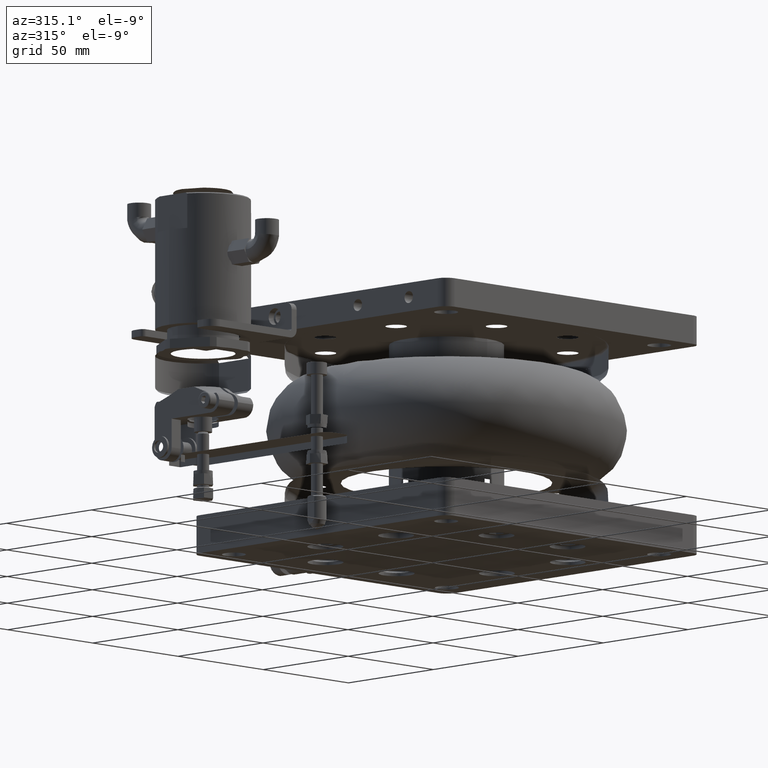
[diagram: clean part render]
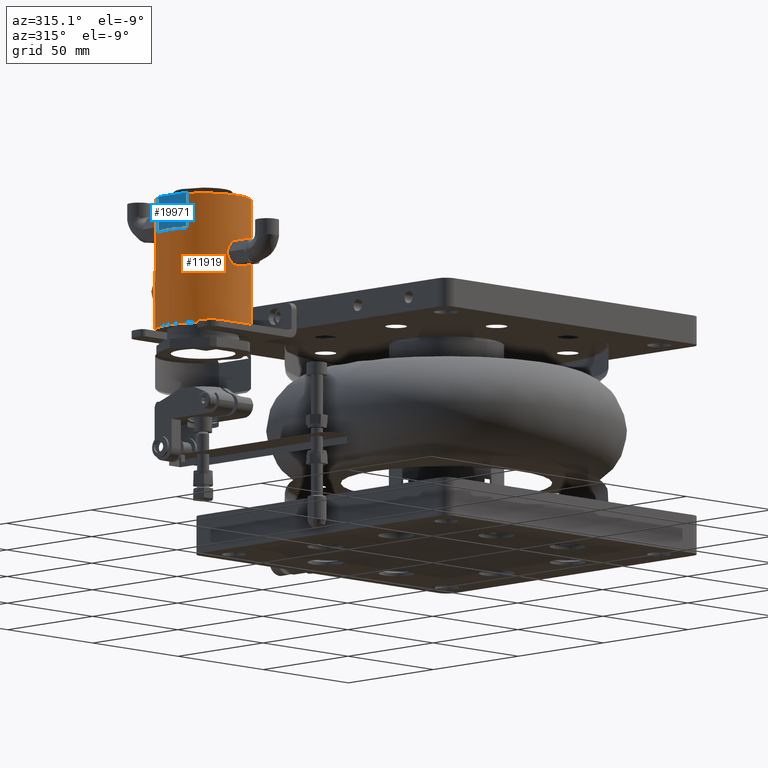
[diagram: same view with the hole feature highlighted: cylindrical wall and planar end face, labeled with their STEP entity ids]
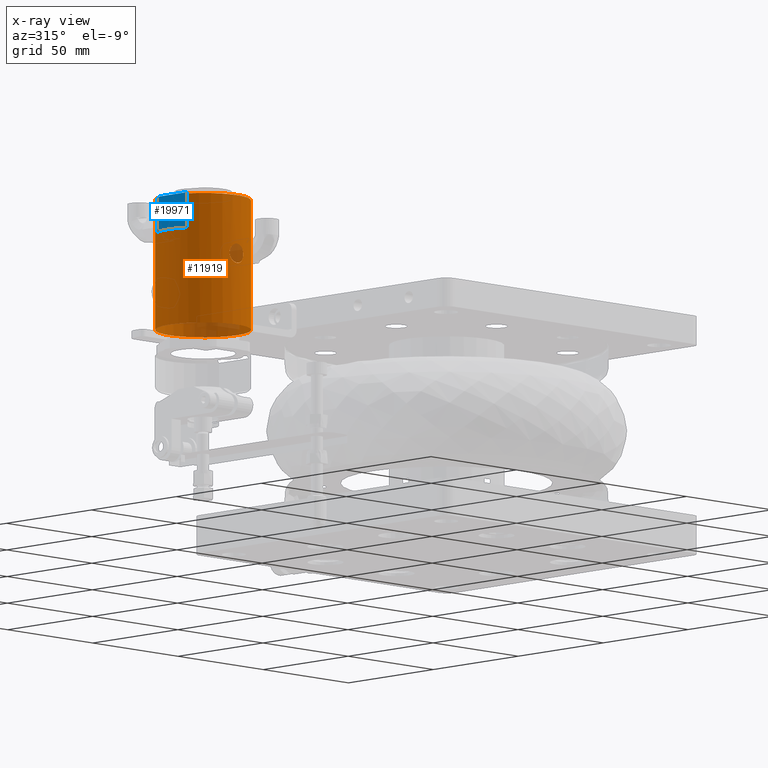
[diagram: x-ray of the same camera — body ghosted, the hole faces saturated]
A machine part, auxiliary view. The highlighted faces form one hole feature of diameter 40 mm: the cylindrical wall (entity #11919, orange) and its adjacent planar end face (entity #19971, blue) — they share a circular edge in the B-rep.
The next image is the same camera in x-ray (body ghosted, the hole faces saturated) — the bore reads through the body.
Wall:
#114 = CARTESIAN_POINT ( 'NONE',  ( 27.35596215659693797, -11.53285506383426195, 236.4699426500647235 ) ) ;
#231 = CARTESIAN_POINT ( 'NONE',  ( 23.91260019275699378, 28.06834811713664024, 247.9977288244026283 ) ) ;
#237 = CARTESIAN_POINT ( 'NONE',  ( 21.35640825523396558, -11.83494652024776173, 240.4878932964990383 ) ) ;
#366 = CARTESIAN_POINT ( 'NONE',  ( 20.92922561031209838, -11.78435881711153677, 233.7933220022276828 ) ) ;
#622 = CARTESIAN_POINT ( 'NONE',  ( 26.87190525661234375, 27.76252008699253793, 227.0218349688905448 ) ) ;
#739 = ORIENTED_EDGE ( 'NONE', *, *, #5106, .T. ) ;
#954 = B_SPLINE_CURVE_WITH_KNOTS ( 'NONE', 3,
 ( #10556, #18221, #14521, #4456, #366, #2219, #26127, #22297, #24539, #20455, #14389, #20582, #10293, #8565, #4067, #12143, #22173, #18347, #237, #8432, #12407, #24277 ),
 .UNSPECIFIED., .F., .F.,
 ( 4, 2, 2, 2, 2, 2, 2, 2, 2, 2, 4 ),
 ( 0.000000000000000000, 0.1249999999999991951, 0.2499999999999983902, 0.3125000000000003331, 0.3750000000000022204, 0.5000000000000001110, 0.5625000000000022204, 0.6250000000000044409, 0.7500000000000028866, 0.8750000000000014433, 1.000000000000000000 ),
 .UNSPECIFIED. ) ;
#995 = CARTESIAN_POINT ( 'NONE',  ( 23.38160134876549989, 28.06834811713664735, 255.9977288244027420 ) ) ;
#1090 = FACE_BOUND ( 'NONE', #8792, .T. ) ;
#1119 = CARTESIAN_POINT ( 'NONE',  ( 22.33837546488574333, 28.04716229549928030, 255.8955298459293886 ) ) ;
#1405 = CARTESIAN_POINT ( 'NONE',  ( 24.42295089680361642, 28.04727231875631688, 255.8961071384808861 ) ) ;
#2128 = VERTEX_POINT ( 'NONE', #14298 ) ;
#2155 = CIRCLE ( 'NONE', #25352, 20.00000000000000355 ) ;
#2212 = CARTESIAN_POINT ( 'NONE',  ( 24.42295089753233839, 28.04727231870035453, 228.8961071384809429 ) ) ;
#2219 = CARTESIAN_POINT ( 'NONE',  ( 20.36550199645368764, -11.70383371851086629, 234.3569381122361506 ) ) ;
#2228 = CARTESIAN_POINT ( 'NONE',  ( 24.42142303333638864, -11.90624858263340080, 240.8697944893502552 ) ) ;
#2335 = CARTESIAN_POINT ( 'NONE',  ( 25.83491133755752145, 27.92092357471315012, 248.7942291088532443 ) ) ;
#2405 = ORIENTED_EDGE ( 'NONE', *, *, #3723, .T. ) ;
#2461 = B_SPLINE_CURVE_WITH_KNOTS ( 'NONE', 3,
 ( #10287, #10418, #24400, #14383, #6835, #14514, #12660, #8295, #8559, #16877, #22554, #4450, #20703, #2602, #4324, #24786, #6305, #622, #16751, #2462, #4838, #2212, #16622, #22426 ),
 .UNSPECIFIED., .F., .F.,
 ( 4, 2, 2, 2, 2, 2, 2, 2, 2, 2, 2, 4 ),
 ( 0.000000000000000000, 0.1249999999999934497, 0.2499999999999868994, 0.3124999999999859557, 0.3437499999999881761, 0.3749999999999904521, 0.4999999999999923395, 0.5624999999999932276, 0.6249999999999942268, 0.7499999999999962252, 0.8749999999999981126, 1.000000000000000000 ),
 .UNSPECIFIED. ) ;
#2462 = CARTESIAN_POINT ( 'NONE',  ( 25.83366721896037888, 27.92106381629494294, 228.2019772700732290 ) ) ;
#2602 = CARTESIAN_POINT ( 'NONE',  ( 27.38146343688402595, 27.66429421054079896, 225.2656706726552898 ) ) ;
#2631 = EDGE_CURVE ( 'NONE', #22022, #23775, #5475, .T. ) ;
#2666 = CARTESIAN_POINT ( 'NONE',  ( 21.35651129918334945, 27.97165265748477125, 221.5075091491665091 ) ) ;
#2730 = CARTESIAN_POINT ( 'NONE',  ( 25.83366721840096858, 27.92106381637481149, 255.2019772706079550 ) ) ;
#2954 = DIRECTION ( 'NONE',  ( -3.592491552025360776E-15, 5.199588846072453600E-16, 1.000000000000000000 ) ) ;
#3095 = CARTESIAN_POINT ( 'NONE',  ( 19.91008873468642548, 27.76530193656049406, 254.0032658745925858 ) ) ;
#3244 = EDGE_CURVE ( 'NONE', #3913, #10311, #11210, .T. ) ;
#3473 = CARTESIAN_POINT ( 'NONE',  ( 19.88941678096776755, 27.76218168619654136, 222.9768866310827207 ) ) ;
#3486 = CARTESIAN_POINT ( 'NONE',  ( 19.50875006638541720, 27.68985959757106841, 250.9610018479168616 ) ) ;
#3723 = EDGE_CURVE ( 'NONE', #22120, #6282, #17170, .T. ) ;
#3814 = CARTESIAN_POINT ( 'NONE',  ( 41.38160134876575569, 16.78614600421797576, 184.4977288244027989 ) ) ;
#3847 = ORIENTED_EDGE ( 'NONE', *, *, #20392, .T. ) ;
#3855 = AXIS2_PLACEMENT_3D ( 'NONE', #17164, #21511, #19544 ) ;
#3913 = VERTEX_POINT ( 'NONE', #25557 ) ;
#4067 = CARTESIAN_POINT ( 'NONE',  ( 19.58592154399034158, -11.56843934093458515, 238.2871153693092197 ) ) ;
#4074 = CARTESIAN_POINT ( 'NONE',  ( 26.56496484466958208, -11.67722230022383201, 239.4348818108748560 ) ) ;
#4110 = CARTESIAN_POINT ( 'NONE',  ( 41.38160134876549279, -0.6494497699447000505, 261.4977288244028273 ) ) ;
#4175 = VECTOR ( 'NONE', #2954, 1000.000000000000000 ) ;
#4324 = CARTESIAN_POINT ( 'NONE',  ( 27.35588005800628508, 27.66956806345555364, 225.5261421040621883 ) ) ;
#4340 = CARTESIAN_POINT ( 'NONE',  ( 26.58278724911428625, -11.67742119337618867, 234.5416489851308199 ) ) ;
#4450 = CARTESIAN_POINT ( 'NONE',  ( 27.28015208234242195, 27.68580620643498946, 223.9556795891849674 ) ) ;
#4456 = CARTESIAN_POINT ( 'NONE',  ( 21.35986551287138369, -11.83525899423776195, 233.5058222492511959 ) ) ;
#4581 = CARTESIAN_POINT ( 'NONE',  ( 27.17628789794840571, 27.70532883542148994, 253.2900605636088187 ) ) ;
#4710 = CARTESIAN_POINT ( 'NONE',  ( 26.96885902040278538, 27.74410648563020132, 250.2227837394485164 ) ) ;
#4838 = CARTESIAN_POINT ( 'NONE',  ( 25.40356879872938833, 27.97195253356915146, 228.4896203947936328 ) ) ;
#4897 = CARTESIAN_POINT ( 'NONE',  ( 5.381601348765540749, 16.78614600421800418, 246.9977288244026852 ) ) ;
#5088 = CARTESIAN_POINT ( 'NONE',  ( 23.38160134876568463, 8.068348117136620701, 206.9977288244027989 ) ) ;
#5095 = CARTESIAN_POINT ( 'NONE',  ( 23.38160134876549989, 28.06834811713664735, 255.9977288244027420 ) ) ;
#5106 = EDGE_CURVE ( 'NONE', #8853, #16606, #20660, .T. ) ;
#5202 = CARTESIAN_POINT ( 'NONE',  ( 19.58574320650059519, 27.70510114275655766, 250.7088488370603443 ) ) ;
#5330 = CARTESIAN_POINT ( 'NONE',  ( 20.19851611278376424, 27.81396428819347477, 254.4352688740602559 ) ) ;
#5444 = CARTESIAN_POINT ( 'NONE',  ( 20.19851611285753989, 27.81396428820533373, 227.4352688742643238 ) ) ;
#5475 = LINE ( 'NONE', #9203, #18831 ) ;
#5583 = CARTESIAN_POINT ( 'NONE',  ( 21.35874647433871232, 27.97185018023045799, 228.4890514842721245 ) ) ;
#5707 = CARTESIAN_POINT ( 'NONE',  ( 22.85076442146784004, 28.06834811713663669, 228.9977288244027704 ) ) ;
#5722 = VERTEX_POINT ( 'NONE', #21680 ) ;
#5891 = CIRCLE ( 'NONE', #13925, 20.00000000000000355 ) ;
#6282 = VERTEX_POINT ( 'NONE', #13353 ) ;
#6305 = CARTESIAN_POINT ( 'NONE',  ( 27.17628789798032329, 27.70532883541550362, 226.2900605635888098 ) ) ;
#6576 = CARTESIAN_POINT ( 'NONE',  ( 27.38146343688396200, 27.66429421054079540, 252.2656706725984748 ) ) ;
#6835 = CARTESIAN_POINT ( 'NONE',  ( 25.83491133773219062, 27.92092357468818520, 221.7942291088765501 ) ) ;
#7195 = CARTESIAN_POINT ( 'NONE',  ( 19.88941678137075897, 27.76218168627232430, 249.9768866305255131 ) ) ;
#7400 = DIRECTION ( 'NONE',  ( 3.592491552025360776E-15, -5.199588846072453600E-16, -1.000000000000000000 ) ) ;
#7585 = EDGE_LOOP ( 'NONE', ( #11931 ) ) ;
#7673 = CARTESIAN_POINT ( 'NONE',  ( 41.38160134876547858, 16.78614600421801839, 261.4977288244028273 ) ) ;
#7776 = CARTESIAN_POINT ( 'NONE',  ( 26.87225216619314594, -11.62576149756875843, 234.9742197855596544 ) ) ;
#7798 = DIRECTION ( 'NONE',  ( -1.000000000000000000, 0.000000000000000000, -4.163336342344336238E-15 ) ) ;
#7890 = ORIENTED_EDGE ( 'NONE', *, *, #25388, .T. ) ;
#7907 = CARTESIAN_POINT ( 'NONE',  ( 27.28050655440199890, -11.54902922974305568, 238.0377338722959450 ) ) ;
#7956 = CARTESIAN_POINT ( 'NONE',  ( 20.92720790349941851, 27.92079482525963385, 228.2005024519211531 ) ) ;
#8173 = CARTESIAN_POINT ( 'NONE',  ( 26.39929540927092333, -11.70358591821106131, 239.6366503668917574 ) ) ;
#8295 = CARTESIAN_POINT ( 'NONE',  ( 26.77943755302661089, 27.77773815100605503, 222.8816840274028266 ) ) ;
#8310 = CARTESIAN_POINT ( 'NONE',  ( 23.90901096982158691, -11.92634071629573533, 240.9721419573922105 ) ) ;
#8432 = CARTESIAN_POINT ( 'NONE',  ( 22.33848225586424974, -11.91050187595975451, 240.8957617188220581 ) ) ;
#8559 = CARTESIAN_POINT ( 'NONE',  ( 26.84615233044478444, 27.76608330353339227, 222.9930350965139496 ) ) ;
#8565 = CARTESIAN_POINT ( 'NONE',  ( 19.50888335559886144, -11.55318974774812624, 238.0349450476471986 ) ) ;
#8620 = DIRECTION ( 'NONE',  ( -1.000000000000000000, 0.000000000000000000, -2.775557561562890957E-15 ) ) ;
#8792 = EDGE_LOOP ( 'NONE', ( #10399, #14588 ) ) ;
#8813 = CARTESIAN_POINT ( 'NONE',  ( 26.84615233056407746, 27.76608330351233178, 249.9930350965299795 ) ) ;
#8853 = VERTEX_POINT ( 'NONE', #20733 ) ;
#9050 = EDGE_LOOP ( 'NONE', ( #14461, #3847 ) ) ;
#9147 = AXIS2_PLACEMENT_3D ( 'NONE', #15138, #11574, #11057 ) ;
#9153 = FACE_BOUND ( 'NONE', #9050, .T. ) ;
#9203 = CARTESIAN_POINT ( 'NONE',  ( 5.381601348765766346, 16.78614600421796865, 184.4977288244026852 ) ) ;
#9237 = EDGE_CURVE ( 'NONE', #2128, #15131, #2461, .T. ) ;
#9280 = EDGE_CURVE ( 'NONE', #17584, #5722, #22636, .T. ) ;
#9420 = CYLINDRICAL_SURFACE ( 'NONE', #15637, 20.00000000000000355 ) ;
#9448 = CARTESIAN_POINT ( 'NONE',  ( 21.35651129954433358, 27.97165265751257124, 248.5075091491666512 ) ) ;
#9615 = EDGE_CURVE ( 'NONE', #6282, #13778, #23302, .T. ) ;
#9820 = EDGE_CURVE ( 'NONE', #23775, #20193, #5891, .T. ) ;
#10287 = CARTESIAN_POINT ( 'NONE',  ( 23.38160134876562424, 28.06834811713663314, 220.9977288244027420 ) ) ;
#10293 = CARTESIAN_POINT ( 'NONE',  ( 19.40711500212839269, -11.53282917194726664, 237.5243752312490528 ) ) ;
#10301 = CARTESIAN_POINT ( 'NONE',  ( 25.40375759526217081, -11.83523817740843143, 233.5059383709548513 ) ) ;
#10311 = VERTEX_POINT ( 'NONE', #25478 ) ;
#10319 = CARTESIAN_POINT ( 'NONE',  ( 23.38160134876552831, 28.06834811713664735, 247.9977288244027420 ) ) ;
#10399 = ORIENTED_EDGE ( 'NONE', *, *, #9237, .T. ) ;
#10418 = CARTESIAN_POINT ( 'NONE',  ( 23.91260019275701865, 28.06834811713664024, 220.9977288244027704 ) ) ;
#10548 = CARTESIAN_POINT ( 'NONE',  ( 27.02434268005038476, 27.73388003404846813, 250.3399577768745132 ) ) ;
#10556 = CARTESIAN_POINT ( 'NONE',  ( 23.38160134876559582, -11.93165188286336864, 232.9977288244027420 ) ) ;
#10685 = CARTESIAN_POINT ( 'NONE',  ( 26.39738699001786060, 27.84057377627743080, 249.3566379530198276 ) ) ;
#10744 = CARTESIAN_POINT ( 'NONE',  ( 20.92674902577597962, 27.92071849237226289, 221.7955440087214072 ) ) ;
#10811 = CARTESIAN_POINT ( 'NONE',  ( 25.40356879945789714, 27.97195253351319977, 255.4896203947935476 ) ) ;
#11057 = DIRECTION ( 'NONE',  ( -1.000000000000000000, 0.000000000000000000, -4.163336342344336238E-15 ) ) ;
#11179 = CARTESIAN_POINT ( 'NONE',  ( 19.40703862889676046, 27.66950984337324471, 251.4716427294065397 ) ) ;
#11210 = B_SPLINE_CURVE_WITH_KNOTS ( 'NONE', 3,
 ( #16116, #20194, #8310, #2228, #11888, #14398, #12150, #8173, #4074, #24413, #18231, #7907, #15982, #18095, #114, #22443, #22052, #7776, #4340, #15854, #10301, #24155, #26007, #23890 ),
 .UNSPECIFIED., .F., .F.,
 ( 4, 2, 2, 2, 2, 2, 2, 2, 2, 2, 2, 4 ),
 ( 0.000000000000000000, 0.06249999999999888978, 0.1249999999999977796, 0.2499999999999980571, 0.3124999999999978906, 0.3749999999999977240, 0.5000000000000034417, 0.5625000000000029976, 0.6250000000000025535, 0.7500000000000016653, 0.8750000000000007772, 1.000000000000000000 ),
 .UNSPECIFIED. ) ;
#11308 = CARTESIAN_POINT ( 'NONE',  ( 19.38154921372559158, 27.66425541738193061, 252.5267589187808426 ) ) ;
#11324 = DIRECTION ( 'NONE',  ( -1.000000000000000000, 0.000000000000000000, -4.163336342344336238E-15 ) ) ;
#11462 = CARTESIAN_POINT ( 'NONE',  ( 23.91195465552982569, 28.06834811713664735, 255.9977288244027989 ) ) ;
#11574 = DIRECTION ( 'NONE',  ( 3.592491552025360776E-15, -5.199588846072453600E-16, -1.000000000000000000 ) ) ;
#11803 = CARTESIAN_POINT ( 'NONE',  ( 19.58574320670224367, 27.70510114279442249, 223.7088488367817547 ) ) ;
#11888 = CARTESIAN_POINT ( 'NONE',  ( 24.67423151313634477, -11.89133950228131198, 240.7923411961808711 ) ) ;
#11919 = ADVANCED_FACE ( 'NONE', ( #23023, #1090, #25643, #9153, #15103 ), #9420, .T. ) ;
#11931 = ORIENTED_EDGE ( 'NONE', *, *, #21031, .T. ) ;
#12070 = CARTESIAN_POINT ( 'NONE',  ( 19.38162758363955618, 27.66427141457311834, 224.7317966598398016 ) ) ;
#12143 = CARTESIAN_POINT ( 'NONE',  ( 19.88957312122486698, -11.62551301453141583, 239.0187942157343741 ) ) ;
#12150 = CARTESIAN_POINT ( 'NONE',  ( 25.83696577798118810, -11.78397157814185370, 240.1996924076705398 ) ) ;
#12180 = ORIENTED_EDGE ( 'NONE', *, *, #9615, .T. ) ;
#12337 = CARTESIAN_POINT ( 'NONE',  ( 22.85034282279362827, 28.06834811713663669, 220.9977288244027420 ) ) ;
#12401 = CARTESIAN_POINT ( 'NONE',  ( 25.40410415957767043, 27.97186654149187390, 248.5063272166214006 ) ) ;
#12407 = CARTESIAN_POINT ( 'NONE',  ( 22.85031300212935079, -11.93165188286336509, 240.9977288244027704 ) ) ;
#12660 = CARTESIAN_POINT ( 'NONE',  ( 26.56313476657345518, 27.81421428259223561, 222.5582005771231877 ) ) ;
#12794 = CARTESIAN_POINT ( 'NONE',  ( 26.87190525667593377, 27.76252008698058660, 254.0218349688504418 ) ) ;
#13003 = CARTESIAN_POINT ( 'NONE',  ( 5.381601348765766346, -0.6494497699447501216, 184.4977288244026852 ) ) ;
#13013 = CARTESIAN_POINT ( 'NONE',  ( 41.38160134876576990, -0.6494497699447432382, 184.4977288244027989 ) ) ;
#13027 = VERTEX_POINT ( 'NONE', #20951 ) ;
#13156 = CARTESIAN_POINT ( 'NONE',  ( 21.35874647457387354, 27.97185018024855196, 255.4890514846792087 ) ) ;
#13173 = DIRECTION ( 'NONE',  ( -3.592491552025360776E-15, 5.199588846072453600E-16, 1.000000000000000000 ) ) ;
#13353 = CARTESIAN_POINT ( 'NONE',  ( 41.38160134876553542, -0.6494497699447160377, 246.9977288244027989 ) ) ;
#13387 = EDGE_CURVE ( 'NONE', #13778, #8853, #13574, .T. ) ;
#13531 = CARTESIAN_POINT ( 'NONE',  ( 19.40703862890003961, 27.66950984337388064, 224.4716427297118173 ) ) ;
#13574 = CIRCLE ( 'NONE', #3855, 20.00000000000000355 ) ;
#13662 = CARTESIAN_POINT ( 'NONE',  ( 20.17828412995284282, 27.81376956715584114, 222.5443749887956244 ) ) ;
#13778 = VERTEX_POINT ( 'NONE', #4110 ) ;
#13785 = CARTESIAN_POINT ( 'NONE',  ( 20.36433549731398074, 27.84034924631982122, 227.6371600281012491 ) ) ;
#13925 = AXIS2_PLACEMENT_3D ( 'NONE', #22616, #22355, #8620 ) ;
#14056 = CARTESIAN_POINT ( 'NONE',  ( 19.48280272440139171, 27.68574434317165256, 226.0378936017405351 ) ) ;
#14298 = CARTESIAN_POINT ( 'NONE',  ( 23.38160134876562424, 28.06834811713663314, 220.9977288244027420 ) ) ;
#14383 = CARTESIAN_POINT ( 'NONE',  ( 25.40410415983895831, 27.97186654147176554, 221.5063272167298010 ) ) ;
#14389 = CARTESIAN_POINT ( 'NONE',  ( 19.38146676985595462, -11.52754235432610841, 236.4693869912880189 ) ) ;
#14398 = CARTESIAN_POINT ( 'NONE',  ( 25.40704354303413126, -11.83485952243809258, 240.4873768684683739 ) ) ;
#14461 = ORIENTED_EDGE ( 'NONE', *, *, #3244, .T. ) ;
#14514 = CARTESIAN_POINT ( 'NONE',  ( 26.39738698993066279, 27.84057377628987595, 222.3566379530080894 ) ) ;
#14521 = CARTESIAN_POINT ( 'NONE',  ( 22.33879820212483125, -11.91047951191728949, 233.0998721540557028 ) ) ;
#14588 = ORIENTED_EDGE ( 'NONE', *, *, #24803, .T. ) ;
#14643 = CARTESIAN_POINT ( 'NONE',  ( 27.35588005800624245, 27.66956806345555719, 252.5261421039767242 ) ) ;
#14771 = CARTESIAN_POINT ( 'NONE',  ( 24.42604679693444680, 28.04707923285541682, 248.1003667753378181 ) ) ;
#14955 = ORIENTED_EDGE ( 'NONE', *, *, #13387, .T. ) ;
#14969 = ORIENTED_EDGE ( 'NONE', *, *, #9280, .T. ) ;
#15008 = CARTESIAN_POINT ( 'NONE',  ( 5.381601348765541637, -0.6494497699447178141, 246.9977288244026852 ) ) ;
#15091 = VECTOR ( 'NONE', #24874, 1000.000000000000000 ) ;
#15103 = FACE_OUTER_BOUND ( 'NONE', #22115, .T. ) ;
#15131 = VERTEX_POINT ( 'NONE', #23020 ) ;
#15138 = CARTESIAN_POINT ( 'NONE',  ( 23.38160134876553897, 8.068348117136642017, 246.9977288244027420 ) ) ;
#15266 = CARTESIAN_POINT ( 'NONE',  ( 23.38160134876552831, 28.06834811713664735, 247.9977288244027420 ) ) ;
#15363 = DIRECTION ( 'NONE',  ( 3.592491552025360776E-15, -5.199588846072453600E-16, -1.000000000000000000 ) ) ;
#15396 = CARTESIAN_POINT ( 'NONE',  ( 22.33853872496636228, 28.04720047900259061, 248.0996848893555580 ) ) ;
#15615 = B_SPLINE_CURVE_WITH_KNOTS ( 'NONE', 3,
 ( #995, #21071, #1119, #13156, #21330, #21591, #5330, #3095, #25551, #23315, #11308, #25158, #11179, #3486, #5202, #7195, #25287, #19233, #9448, #15396, #21456, #15266 ),
 .UNSPECIFIED., .F., .F.,
 ( 4, 2, 2, 2, 2, 2, 2, 2, 2, 2, 4 ),
 ( 0.000000000000000000, 0.1249999999999857336, 0.2499999999999714673, 0.3124999999999688582, 0.3749999999999663047, 0.4999999999999730216, 0.5624999999999764633, 0.6249999999999797939, 0.7499999999999865663, 0.8749999999999932276, 1.000000000000000000 ),
 .UNSPECIFIED. ) ;
#15637 = AXIS2_PLACEMENT_3D ( 'NONE', #25394, #15363, #23534 ) ;
#15854 = CARTESIAN_POINT ( 'NONE',  ( 25.83408138201863835, -11.78431766152081650, 233.7937678942782043 ) ) ;
#15982 = CARTESIAN_POINT ( 'NONE',  ( 27.38179525555675298, -11.52753024407597238, 237.5263648664252685 ) ) ;
#16034 = CARTESIAN_POINT ( 'NONE',  ( 19.91008873476001284, 27.76530193657342593, 227.0032658747966536 ) ) ;
#16116 = CARTESIAN_POINT ( 'NONE',  ( 23.38160134876556384, -11.93165188286336509, 240.9977288244027704 ) ) ;
#16606 = VERTEX_POINT ( 'NONE', #15008 ) ;
#16616 = EDGE_CURVE ( 'NONE', #5722, #17584, #15615, .T. ) ;
#16622 = CARTESIAN_POINT ( 'NONE',  ( 23.91195465626068639, 28.06834811713664379, 228.9977288244028273 ) ) ;
#16751 = CARTESIAN_POINT ( 'NONE',  ( 26.58224693038556907, 27.81420377153251167, 227.4544743941436593 ) ) ;
#16763 = EDGE_CURVE ( 'NONE', #16606, #22022, #26115, .T. ) ;
#16877 = CARTESIAN_POINT ( 'NONE',  ( 26.96885902032699889, 27.74410648564407467, 223.2227837394381993 ) ) ;
#17164 = CARTESIAN_POINT ( 'NONE',  ( 23.38160134876548568, 8.068348117136649122, 261.4977288244027136 ) ) ;
#17170 = CIRCLE ( 'NONE', #9147, 20.00000000000000355 ) ;
#17584 = VERTEX_POINT ( 'NONE', #10319 ) ;
#17858 = CARTESIAN_POINT ( 'NONE',  ( 23.38160134876553897, 8.068348117136642017, 246.9977288244027420 ) ) ;
#18060 = B_SPLINE_CURVE_WITH_KNOTS ( 'NONE', 3,
 ( #23682, #5707, #26056, #5583, #7956, #13785, #5444, #16034, #24074, #14056, #21836, #12070, #13531, #21578, #11803, #3473, #13662, #10744, #2666, #22618, #12337, #20388 ),
 .UNSPECIFIED., .F., .F.,
 ( 4, 2, 2, 2, 2, 2, 2, 2, 2, 2, 4 ),
 ( 0.000000000000000000, 0.1250000000000018874, 0.2500000000000037748, 0.3125000000000049960, 0.3750000000000062172, 0.5000000000000086597, 0.5625000000000098810, 0.6250000000000109912, 0.7500000000000073275, 0.8750000000000036637, 1.000000000000000000 ),
 .UNSPECIFIED. ) ;
#18095 = CARTESIAN_POINT ( 'NONE',  ( 27.38150364199952236, -11.52758976943629321, 236.7304040701212102 ) ) ;
#18221 = CARTESIAN_POINT ( 'NONE',  ( 22.85105298868976931, -11.93165188286336864, 232.9977288244027136 ) ) ;
#18231 = CARTESIAN_POINT ( 'NONE',  ( 26.97497231097057124, -11.60646888508943242, 238.7749217486110638 ) ) ;
#18347 = CARTESIAN_POINT ( 'NONE',  ( 20.92668611814479362, -11.78401429485908025, 240.1998647650969190 ) ) ;
#18601 = CARTESIAN_POINT ( 'NONE',  ( 27.28015208234211642, 27.68580620643504275, 250.9556795895821892 ) ) ;
#18831 = VECTOR ( 'NONE', #21346, 1000.000000000000000 ) ;
#18858 = CARTESIAN_POINT ( 'NONE',  ( 23.38160134876552831, 28.06834811713664735, 247.9977288244027420 ) ) ;
#19058 = VECTOR ( 'NONE', #7400, 1000.000000000000000 ) ;
#19233 = CARTESIAN_POINT ( 'NONE',  ( 20.92674902577766716, 27.92071849237254000, 248.7955440088700811 ) ) ;
#19385 = CARTESIAN_POINT ( 'NONE',  ( 5.381601348765489234, 16.78614600421800418, 261.4977288244025999 ) ) ;
#19544 = DIRECTION ( 'NONE',  ( -1.000000000000000000, 0.000000000000000000, -2.775557561562890957E-15 ) ) ;
#20120 = CARTESIAN_POINT ( 'NONE',  ( 41.38160134876553542, 16.78614600421801129, 246.9977288244027989 ) ) ;
#20193 = VERTEX_POINT ( 'NONE', #7673 ) ;
#20194 = CARTESIAN_POINT ( 'NONE',  ( 23.64774262431341256, -11.93165188286336864, 240.9977288244028557 ) ) ;
#20388 = CARTESIAN_POINT ( 'NONE',  ( 23.38160134876562424, 28.06834811713663314, 220.9977288244027420 ) ) ;
#20392 = EDGE_CURVE ( 'NONE', #10311, #3913, #954, .T. ) ;
#20455 = CARTESIAN_POINT ( 'NONE',  ( 19.48278675838683327, -11.54904727473019044, 235.9574193489182790 ) ) ;
#20576 = CARTESIAN_POINT ( 'NONE',  ( 26.56313476670394280, 27.81421428257121065, 249.5582005771407523 ) ) ;
#20582 = CARTESIAN_POINT ( 'NONE',  ( 19.38166910041537960, -11.52758365487528813, 237.2642548077407980 ) ) ;
#20660 = LINE ( 'NONE', #13003, #15091 ) ;
#20703 = CARTESIAN_POINT ( 'NONE',  ( 27.38187462345410239, 27.66421027745222361, 224.4696667508628423 ) ) ;
#20733 = CARTESIAN_POINT ( 'NONE',  ( 5.381601348765490123, -0.6494497699446967198, 261.4977288244026568 ) ) ;
#20837 = CARTESIAN_POINT ( 'NONE',  ( 26.58224693094481950, 27.81420377145267864, 254.4544743936089617 ) ) ;
#20951 = CARTESIAN_POINT ( 'NONE',  ( 3.381601348765681081, 8.068348117136620701, 206.9977288244027136 ) ) ;
#21031 = EDGE_CURVE ( 'NONE', #13027, #13027, #2155, .T. ) ;
#21071 = CARTESIAN_POINT ( 'NONE',  ( 22.85076442221712156, 28.06834811713664735, 255.9977288244027989 ) ) ;
#21330 = CARTESIAN_POINT ( 'NONE',  ( 20.92720790359776828, 27.92079482527372036, 255.2005024521932341 ) ) ;
#21346 = DIRECTION ( 'NONE',  ( -3.592491552025360776E-15, 5.199588846072453600E-16, 1.000000000000000000 ) ) ;
#21456 = CARTESIAN_POINT ( 'NONE',  ( 22.85034282243141135, 28.06834811713665445, 247.9977288244028273 ) ) ;
#21511 = DIRECTION ( 'NONE',  ( 3.592491552025360776E-15, -5.199588846072453600E-16, -1.000000000000000000 ) ) ;
#21578 = CARTESIAN_POINT ( 'NONE',  ( 19.50875006638871056, 27.68985959757167947, 223.9610018482220255 ) ) ;
#21591 = CARTESIAN_POINT ( 'NONE',  ( 20.36433549726462289, 27.84034924631279395, 254.6371600279651659 ) ) ;
#21680 = CARTESIAN_POINT ( 'NONE',  ( 23.38160134876549989, 28.06834811713664735, 255.9977288244027420 ) ) ;
#21836 = CARTESIAN_POINT ( 'NONE',  ( 19.38154921372144912, 27.66425541738103533, 225.5267589183737584 ) ) ;
#22022 = VERTEX_POINT ( 'NONE', #4897 ) ;
#22052 = CARTESIAN_POINT ( 'NONE',  ( 27.17651155517030404, -11.56858916153885630, 235.7060534384501125 ) ) ;
#22115 = EDGE_LOOP ( 'NONE', ( #25775, #24945, #24306, #7890, #2405, #12180, #14955, #739 ) ) ;
#22120 = VERTEX_POINT ( 'NONE', #20120 ) ;
#22173 = CARTESIAN_POINT ( 'NONE',  ( 20.17824066925140514, -11.67706609689535746, 239.4510251151817783 ) ) ;
#22297 = CARTESIAN_POINT ( 'NONE',  ( 19.91059400647990785, -11.62869630734653015, 234.9912791517406276 ) ) ;
#22355 = DIRECTION ( 'NONE',  ( 3.592491552025360776E-15, -5.199588846072453600E-16, -1.000000000000000000 ) ) ;
#22426 = CARTESIAN_POINT ( 'NONE',  ( 23.38160134876560647, 28.06834811713663314, 228.9977288244027420 ) ) ;
#22443 = CARTESIAN_POINT ( 'NONE',  ( 27.25387023564731237, -11.55327881949166269, 235.9587375007083097 ) ) ;
#22554 = CARTESIAN_POINT ( 'NONE',  ( 27.02434268005043094, 27.73388003404845037, 223.3399577769737903 ) ) ;
#22616 = CARTESIAN_POINT ( 'NONE',  ( 23.38160134876548568, 8.068348117136649122, 261.4977288244027136 ) ) ;
#22618 = CARTESIAN_POINT ( 'NONE',  ( 22.33853872532751339, 28.04720047903035862, 221.0996848893554443 ) ) ;
#22636 = B_SPLINE_CURVE_WITH_KNOTS ( 'NONE', 3,
 ( #18858, #231, #14771, #12401, #2335, #10685, #20576, #22810, #8813, #4710, #10548, #18601, #24657, #6576, #14643, #22685, #4581, #12794, #20837, #2730, #10811, #1405, #11462, #5095 ),
 .UNSPECIFIED., .F., .F.,
 ( 4, 2, 2, 2, 2, 2, 2, 2, 2, 2, 2, 4 ),
 ( 0.000000000000000000, 0.1250000000000333900, 0.2500000000000667799, 0.3125000000000837663, 0.3437500000000894840, 0.3750000000000893730, 0.5000000000000643929, 0.5625000000000519584, 0.6250000000000395239, 0.7500000000000263123, 0.8750000000000132117, 1.000000000000000000 ),
 .UNSPECIFIED. ) ;
#22685 = CARTESIAN_POINT ( 'NONE',  ( 27.25370007464631428, 27.69000875276397977, 253.0373585484094860 ) ) ;
#22800 = ORIENTED_EDGE ( 'NONE', *, *, #16616, .T. ) ;
#22810 = CARTESIAN_POINT ( 'NONE',  ( 26.77943755315686758, 27.77773815098360899, 249.8816840274204196 ) ) ;
#23020 = CARTESIAN_POINT ( 'NONE',  ( 23.38160134876560647, 28.06834811713663314, 228.9977288244027420 ) ) ;
#23023 = FACE_BOUND ( 'NONE', #23899, .T. ) ;
#23302 = LINE ( 'NONE', #13013, #4175 ) ;
#23315 = CARTESIAN_POINT ( 'NONE',  ( 19.48280272440559457, 27.68574434317248389, 253.0378936017872320 ) ) ;
#23534 = DIRECTION ( 'NONE',  ( -1.000000000000000000, 0.000000000000000000, -4.163336342344336238E-15 ) ) ;
#23636 = LINE ( 'NONE', #3814, #19058 ) ;
#23682 = CARTESIAN_POINT ( 'NONE',  ( 23.38160134876560647, 28.06834811713663314, 228.9977288244027420 ) ) ;
#23775 = VERTEX_POINT ( 'NONE', #19385 ) ;
#23890 = CARTESIAN_POINT ( 'NONE',  ( 23.38160134876559582, -11.93165188286336864, 232.9977288244027420 ) ) ;
#23899 = EDGE_LOOP ( 'NONE', ( #14969, #22800 ) ) ;
#24074 = CARTESIAN_POINT ( 'NONE',  ( 19.78801509380226520, 27.74312522334009401, 226.7744509555867296 ) ) ;
#24155 = CARTESIAN_POINT ( 'NONE',  ( 24.42305481885863117, -11.91057172201579561, 233.0993707337132435 ) ) ;
#24277 = CARTESIAN_POINT ( 'NONE',  ( 23.38160134876556384, -11.93165188286336509, 240.9977288244027704 ) ) ;
#24306 = ORIENTED_EDGE ( 'NONE', *, *, #9820, .T. ) ;
#24400 = CARTESIAN_POINT ( 'NONE',  ( 24.42604679667333301, 28.04707923287550031, 221.1003667752294177 ) ) ;
#24413 = CARTESIAN_POINT ( 'NONE',  ( 26.85315346037706519, -11.62859784385846318, 239.0031689473264009 ) ) ;
#24539 = CARTESIAN_POINT ( 'NONE',  ( 19.78832625069650319, -11.60648640217619487, 235.2203475151019632 ) ) ;
#24657 = CARTESIAN_POINT ( 'NONE',  ( 27.38187462345395318, 27.66421027745224492, 251.4696667509770407 ) ) ;
#24786 = CARTESIAN_POINT ( 'NONE',  ( 27.25370007464636046, 27.69000875276397622, 226.0373585484950354 ) ) ;
#24803 = EDGE_CURVE ( 'NONE', #15131, #2128, #18060, .T. ) ;
#24827 = AXIS2_PLACEMENT_3D ( 'NONE', #17858, #25895, #7798 ) ;
#24874 = DIRECTION ( 'NONE',  ( 3.592491552025360776E-15, -5.199588846072453600E-16, -1.000000000000000000 ) ) ;
#24945 = ORIENTED_EDGE ( 'NONE', *, *, #2631, .T. ) ;
#25158 = CARTESIAN_POINT ( 'NONE',  ( 19.38162758363734284, 27.66427141457270267, 251.7317966596363021 ) ) ;
#25287 = CARTESIAN_POINT ( 'NONE',  ( 20.17828412995088172, 27.81376956715559245, 249.5443749886468368 ) ) ;
#25352 = AXIS2_PLACEMENT_3D ( 'NONE', #5088, #13173, #11324 ) ;
#25388 = EDGE_CURVE ( 'NONE', #20193, #22120, #23636, .T. ) ;
#25394 = CARTESIAN_POINT ( 'NONE',  ( 23.38160134876576635, 8.068348117136608266, 184.4977288244027420 ) ) ;
#25478 = CARTESIAN_POINT ( 'NONE',  ( 23.38160134876559582, -11.93165188286336864, 232.9977288244027420 ) ) ;
#25551 = CARTESIAN_POINT ( 'NONE',  ( 19.78801509380002699, 27.74312522333971032, 253.7744509555633954 ) ) ;
#25557 = CARTESIAN_POINT ( 'NONE',  ( 23.38160134876556384, -11.93165188286336509, 240.9977288244027704 ) ) ;
#25643 = FACE_OUTER_BOUND ( 'NONE', #7585, .T. ) ;
#25775 = ORIENTED_EDGE ( 'NONE', *, *, #16763, .T. ) ;
#25895 = DIRECTION ( 'NONE',  ( 3.592491552025360776E-15, -5.199588846072453600E-16, -1.000000000000000000 ) ) ;
#26007 = CARTESIAN_POINT ( 'NONE',  ( 23.91200967644488529, -11.93165188286337397, 232.9977288244027989 ) ) ;
#26056 = CARTESIAN_POINT ( 'NONE',  ( 22.33837546512113903, 28.04716229551736717, 228.8955298463364159 ) ) ;
#26115 = CIRCLE ( 'NONE', #24827, 20.00000000000000355 ) ;
#26127 = CARTESIAN_POINT ( 'NONE',  ( 20.19943706577281262, -11.67741804947005768, 234.5589551348047905 ) ) ;
End face:
#1461 = EDGE_CURVE ( 'NONE', #8853, #9417, #17424, .T. ) ;
#1851 = EDGE_CURVE ( 'NONE', #23178, #23775, #18603, .T. ) ;
#2631 = EDGE_CURVE ( 'NONE', #22022, #23775, #5475, .T. ) ;
#4540 = CARTESIAN_POINT ( 'NONE',  ( 5.381601348765488346, 15.56834811713652833, 261.9977288244026568 ) ) ;
#4723 = VECTOR ( 'NONE', #22883, 1000.000000000000000 ) ;
#4897 = CARTESIAN_POINT ( 'NONE',  ( 5.381601348765540749, 16.78614600421800418, 246.9977288244026852 ) ) ;
#5106 = EDGE_CURVE ( 'NONE', #8853, #16606, #20660, .T. ) ;
#5475 = LINE ( 'NONE', #9203, #18831 ) ;
#5726 = FACE_OUTER_BOUND ( 'NONE', #12166, .T. ) ;
#6139 = CARTESIAN_POINT ( 'NONE',  ( 5.381601348765488346, 0.5683481171367974483, 261.9977288244026568 ) ) ;
#6946 = LINE ( 'NONE', #22930, #8044 ) ;
#7335 = ORIENTED_EDGE ( 'NONE', *, *, #1461, .T. ) ;
#7530 = ORIENTED_EDGE ( 'NONE', *, *, #5106, .F. ) ;
#7721 = DIRECTION ( 'NONE',  ( -1.000000000000000000, -5.551115123125885008E-17, -3.528129548921089616E-15 ) ) ;
#8042 = CARTESIAN_POINT ( 'NONE',  ( 5.381601348765488346, 0.5683481171367974483, 261.9977288244026568 ) ) ;
#8044 = VECTOR ( 'NONE', #13034, 1000.000000000000000 ) ;
#8853 = VERTEX_POINT ( 'NONE', #20733 ) ;
#9203 = CARTESIAN_POINT ( 'NONE',  ( 5.381601348765766346, 16.78614600421796865, 184.4977288244026852 ) ) ;
#9417 = VERTEX_POINT ( 'NONE', #6139 ) ;
#9446 = CARTESIAN_POINT ( 'NONE',  ( 5.381601348765488346, 15.56834811713652833, 261.9977288244026568 ) ) ;
#9711 = PLANE ( 'NONE',  #19847 ) ;
#12166 = EDGE_LOOP ( 'NONE', ( #15080, #24193, #23503, #18003, #7530, #7335 ) ) ;
#12360 = CARTESIAN_POINT ( 'NONE',  ( 5.381601348765489234, 16.38379175422564060, 261.6731109759247147 ) ) ;
#12513 = EDGE_CURVE ( 'NONE', #22022, #16606, #6946, .T. ) ;
#12730 = LINE ( 'NONE', #21033, #4723 ) ;
#13003 = CARTESIAN_POINT ( 'NONE',  ( 5.381601348765766346, -0.6494497699447501216, 184.4977288244026852 ) ) ;
#13034 = DIRECTION ( 'NONE',  ( 5.551115123125885008E-17, -1.000000000000000000, 1.958505329536316784E-31 ) ) ;
#14472 = CARTESIAN_POINT ( 'NONE',  ( 5.381601348765489234, 16.78614600421800418, 261.4977288244025999 ) ) ;
#15008 = CARTESIAN_POINT ( 'NONE',  ( 5.381601348765541637, -0.6494497699447178141, 246.9977288244026852 ) ) ;
#15080 = ORIENTED_EDGE ( 'NONE', *, *, #22967, .T. ) ;
#15091 = VECTOR ( 'NONE', #24874, 1000.000000000000000 ) ;
#15793 = DIRECTION ( 'NONE',  ( -3.528129548921089616E-15, 0.000000000000000000, 1.000000000000000000 ) ) ;
#16606 = VERTEX_POINT ( 'NONE', #15008 ) ;
#16834 = CARTESIAN_POINT ( 'NONE',  ( 5.381601348765489234, 15.97801760550939676, 261.8401636365668992 ) ) ;
#17424 = B_SPLINE_CURVE_WITH_KNOTS ( 'NONE', 3,
 ( #21915, #22182, #20077, #8042 ),
 .UNSPECIFIED., .F., .F.,
 ( 4, 4 ),
 ( 1.897353801849633068E-17, 0.001316446616380671092 ),
 .UNSPECIFIED. ) ;
#18003 = ORIENTED_EDGE ( 'NONE', *, *, #12513, .T. ) ;
#18603 = B_SPLINE_CURVE_WITH_KNOTS ( 'NONE', 3,
 ( #4540, #16834, #12360, #14472 ),
 .UNSPECIFIED., .F., .F.,
 ( 4, 4 ),
 ( 6.071532165918824830E-17, 0.001316446616380618833 ),
 .UNSPECIFIED. ) ;
#18831 = VECTOR ( 'NONE', #21346, 1000.000000000000000 ) ;
#19385 = CARTESIAN_POINT ( 'NONE',  ( 5.381601348765489234, 16.78614600421800418, 261.4977288244025999 ) ) ;
#19847 = AXIS2_PLACEMENT_3D ( 'NONE', #21600, #7721, #15793 ) ;
#19971 = ADVANCED_FACE ( 'NONE', ( #5726 ), #9711, .T. ) ;
#20077 = CARTESIAN_POINT ( 'NONE',  ( 5.381601348765490123, 0.1586786287638683735, 261.8401636365668992 ) ) ;
#20660 = LINE ( 'NONE', #13003, #15091 ) ;
#20733 = CARTESIAN_POINT ( 'NONE',  ( 5.381601348765490123, -0.6494497699446967198, 261.4977288244026568 ) ) ;
#21033 = CARTESIAN_POINT ( 'NONE',  ( 5.381601348765487458, 31.14607447321121825, 261.9977288244027136 ) ) ;
#21346 = DIRECTION ( 'NONE',  ( -3.592491552025360776E-15, 5.199588846072453600E-16, 1.000000000000000000 ) ) ;
#21600 = CARTESIAN_POINT ( 'NONE',  ( 5.381601348765540749, 31.14607447321121825, 246.9977288244026852 ) ) ;
#21915 = CARTESIAN_POINT ( 'NONE',  ( 5.381601348765490123, -0.6494497699446967198, 261.4977288244026568 ) ) ;
#22022 = VERTEX_POINT ( 'NONE', #4897 ) ;
#22182 = CARTESIAN_POINT ( 'NONE',  ( 5.381601348765490123, -0.2470955199522868739, 261.6731109759247147 ) ) ;
#22883 = DIRECTION ( 'NONE',  ( -5.551115123125885008E-17, 1.000000000000000000, -1.958505329536316784E-31 ) ) ;
#22930 = CARTESIAN_POINT ( 'NONE',  ( 5.381601348765540749, 31.14607447321121825, 246.9977288244026852 ) ) ;
#22967 = EDGE_CURVE ( 'NONE', #9417, #23178, #12730, .T. ) ;
#23178 = VERTEX_POINT ( 'NONE', #9446 ) ;
#23503 = ORIENTED_EDGE ( 'NONE', *, *, #2631, .F. ) ;
#23775 = VERTEX_POINT ( 'NONE', #19385 ) ;
#24193 = ORIENTED_EDGE ( 'NONE', *, *, #1851, .T. ) ;
#24874 = DIRECTION ( 'NONE',  ( 3.592491552025360776E-15, -5.199588846072453600E-16, -1.000000000000000000 ) ) ;